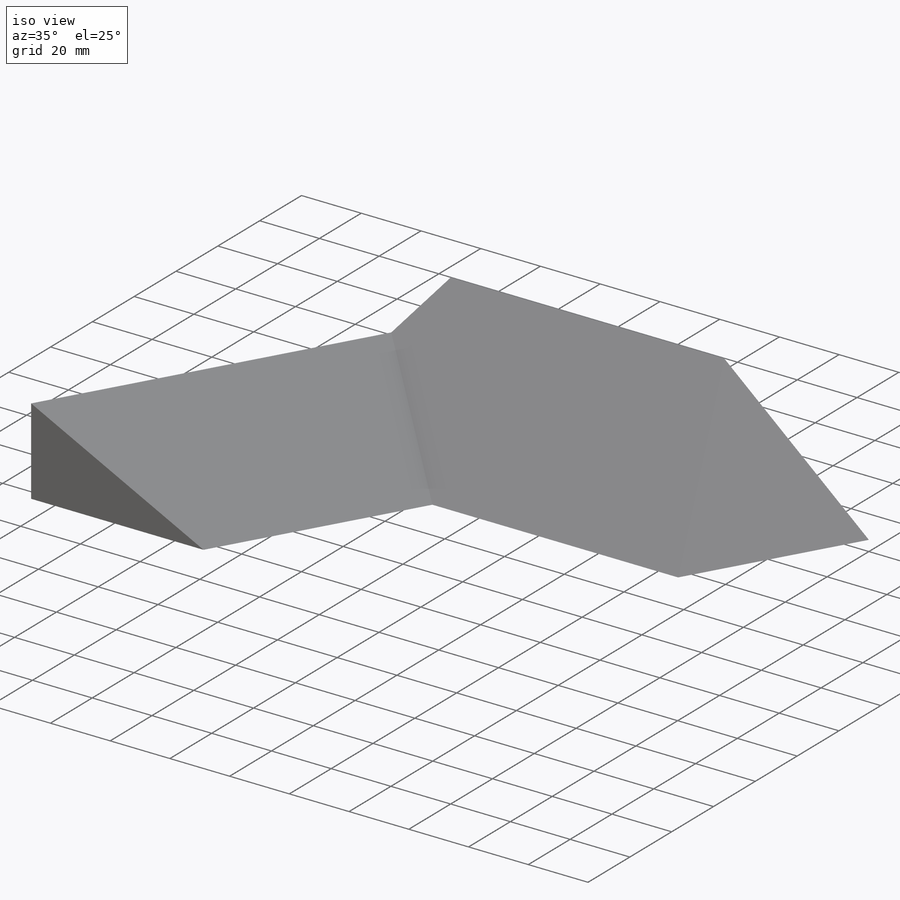
[diagram: iso view]
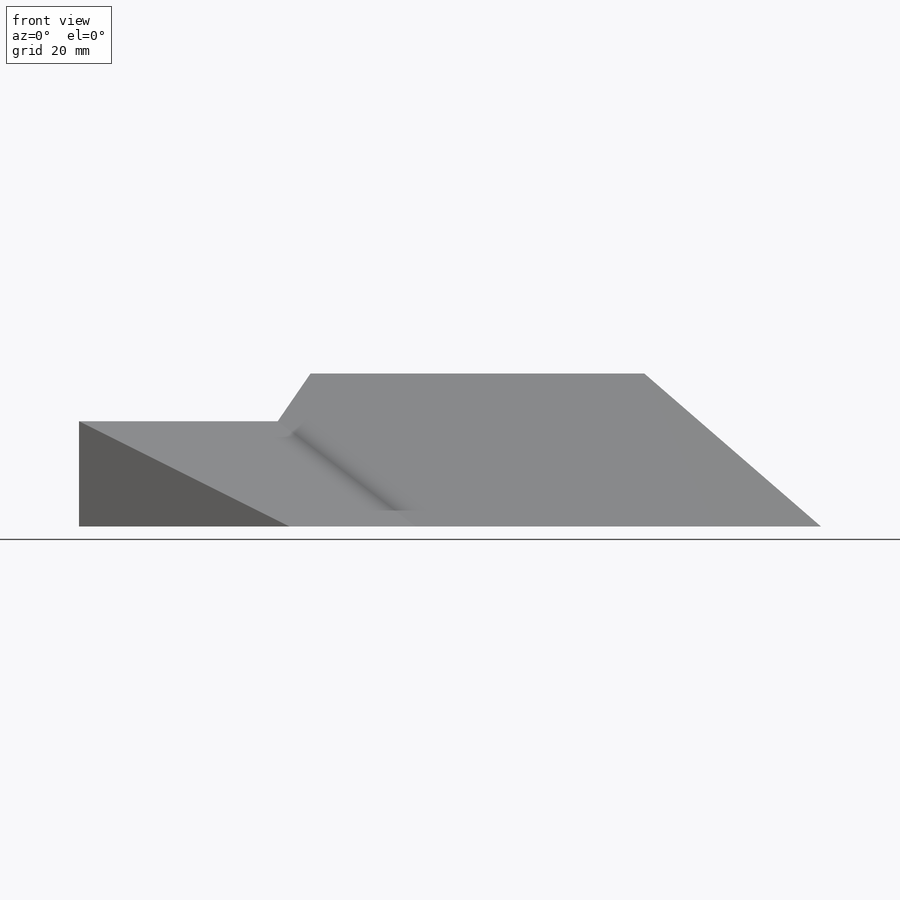
[diagram: front view]
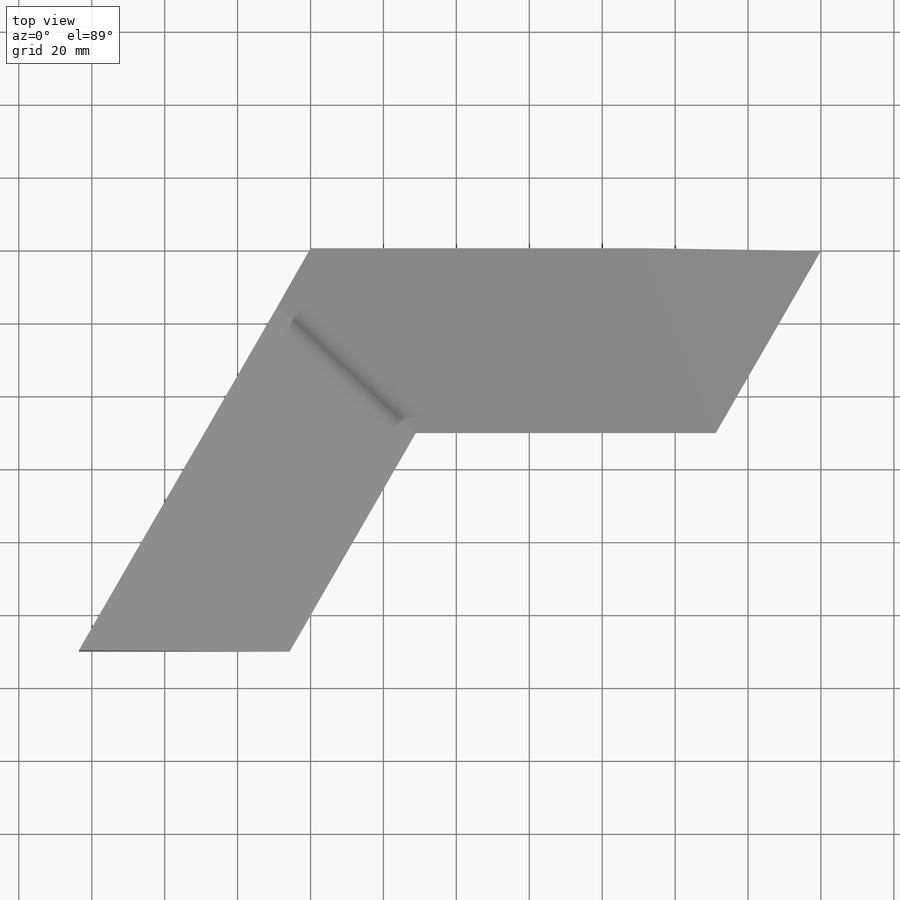
[diagram: top view]
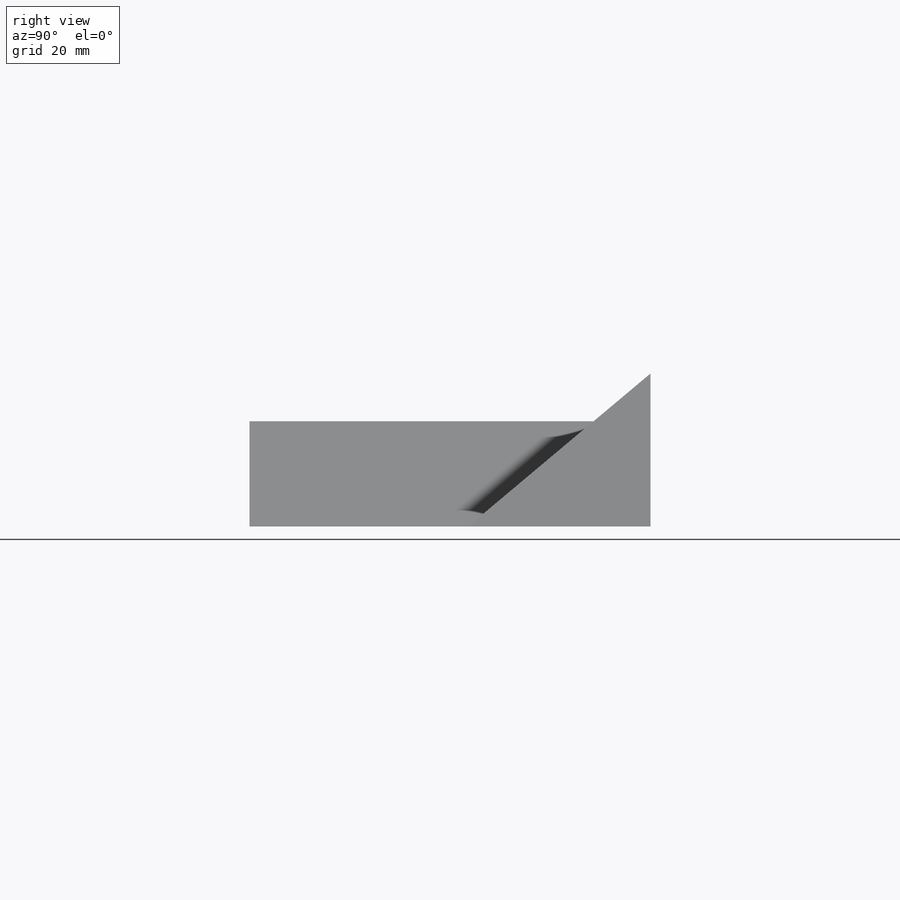
[diagram: right view]
SOLIDWORKS PART (.sldprt)
format: sldprt  version: not decoded by parser v0  size: 258,560 bytes
history: native  units: mm
features: sketch x9, plane x4, cut_extrude x3, extrude x2, material x1 (+14 scaffold rows collapsed)
feature tree (33):
  scaffold x14  (default folders/planes/origin — collapsed)
  material  "Material <not specified>"
  sketch  "Sketch1"  dims[c1.D1=50.0mm c1.D2=~64.461971mm c2.D2=40.0deg]
  extrude  "Extrude1"  Depth=153.73mm
  sketch  "Sketch2"  dims[c1.D1=110.0mm c1.D2=110.0mm c2.D2=60.0deg c2.D3=~111.132487mm c2.D1=~127.017059mm c3.D1=120.0deg c3.D2=110.0mm c3.D3=50.0mm c4.D2=50.0mm]
  plane  "Plane2"
  sketch  "Sketch3"
  plane  "Plane3"
  sketch  "Sketch4"  dims[c1.D1=~86.949858mm c2.D1=30.0deg c2.D2=~61.890529mm]
  extrude  "Extrude2"  Depth=127.02mm
  sketch  "Sketch5"
  sketch  "Sketch6"
  cut_extrude  "Cut-Extrude1"  [1 undecoded]
  sketch  "Sketch7"  dims[c1.D1=~24.27792mm c2.D1=60.0deg]
  plane  "Plane5"
  sketch  "Sketch9"  dims[c1.D1=~55.709885mm c2.D1=~47.889066deg c3.D1=~83.078626mm c4.D1=45.0deg]
  cut_extrude  "Cut-Extrude2"  Depth=60mm
  sketch  "Sketch10"  dims[param=0.0mm]
  cut_extrude  "Cut-Extrude3"  [1 undecoded]
  plane  "BC Dihedral Angle Plane"
decode coverage: 9 of 14 modeling features carry decoded parameters
note: ~ marks probable driven/reference dimensions
note: 2 parameter values undecoded
note: suppression state not decoded; provenance and decode notes live in map.json
